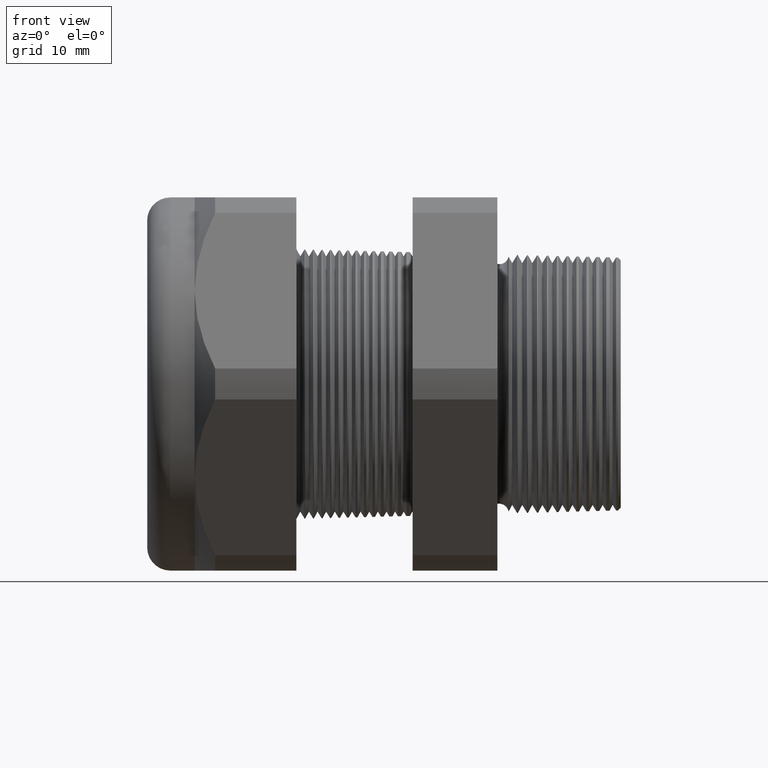
[diagram: clean part render]
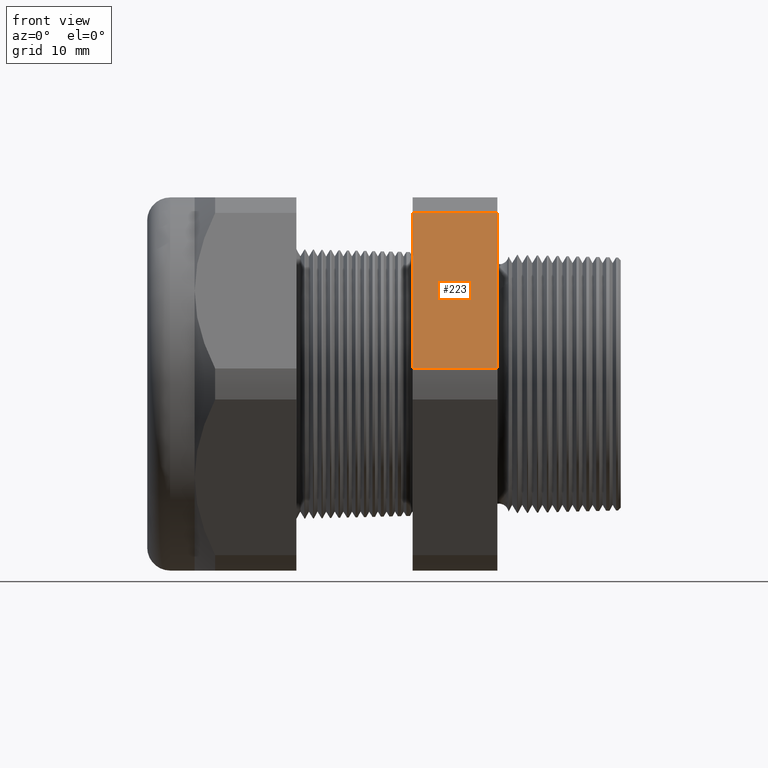
[diagram: same view with one face highlighted and labeled with its STEP entity id]
A machine part, front view. The second image highlights one B-rep face of the part: STEP entity #223.
In plain terms, the highlighted planar face has unit normal (0, -0.866, 0.5).
Its self-contained STEP definition (entity closure, byte-faithful):
#201 = ORIENTED_EDGE ( 'NONE', *, *, #5566, .F. ) ;
#202 = ORIENTED_EDGE ( 'NONE', *, *, #203, .F. ) ;
#203 = EDGE_CURVE ( 'NONE', #5491, #5564, #1127, .T. ) ;
#204 = ORIENTED_EDGE ( 'NONE', *, *, #5490, .F. ) ;
#221 = EDGE_CURVE ( 'NONE', #5488, #5567, #1167, .T. ) ;
#223 = ADVANCED_FACE ( 'NONE', ( #1163 ), #1162, .T. ) ;
#224 = EDGE_LOOP ( 'NONE', ( #225, #201, #202, #204 ) ) ;
#225 = ORIENTED_EDGE ( 'NONE', *, *, #221, .T. ) ;
#1124 = DIRECTION ( 'NONE',  ( -1.000000000000000000, 0.0000000000000000000, 0.0000000000000000000 ) ) ;
#1125 = VECTOR ( 'NONE', #1124, 39.37007874015748100 ) ;
#1126 = CARTESIAN_POINT ( 'NONE',  ( 0.1200000000000000900, -0.7194909755756819800, 0.05380507471562025900 ) ) ;
#1127 = LINE ( 'NONE', #1126, #1125 ) ;
#1158 = DIRECTION ( 'NONE',  ( 0.0000000000000000000, -0.4999999999999995600, -0.8660254037844388200 ) ) ;
#1159 = DIRECTION ( 'NONE',  ( 0.0000000000000000000, -0.8660254037844389300, 0.4999999999999996100 ) ) ;
#1160 = CARTESIAN_POINT ( 'NONE',  ( 0.1200000000000000900, -0.7194909755756819800, 0.05380507471562023100 ) ) ;
#1161 = AXIS2_PLACEMENT_3D ( 'NONE', #1160, #1159, #1158 ) ;
#1162 = PLANE ( 'NONE',  #1161 ) ;
#1163 = FACE_OUTER_BOUND ( 'NONE', #224, .T. ) ;
#1164 = DIRECTION ( 'NONE',  ( -1.000000000000000000, 0.0000000000000000000, 0.0000000000000000000 ) ) ;
#1165 = VECTOR ( 'NONE', #1164, 39.37007874015748100 ) ;
#1166 = CARTESIAN_POINT ( 'NONE',  ( 0.1200000000000000900, -0.4063420493440885700, 0.5961949252843791200 ) ) ;
#1167 = LINE ( 'NONE', #1166, #1165 ) ;
#3827 = CARTESIAN_POINT ( 'NONE',  ( -0.3100000000000000000, -0.7194909755756819800, 0.05380507471562025900 ) ) ;
#3828 = DIRECTION ( 'NONE',  ( 0.0000000000000000000, -0.4999999999999995600, -0.8660254037844388200 ) ) ;
#3829 = VECTOR ( 'NONE', #3828, 39.37007874015748900 ) ;
#3830 = CARTESIAN_POINT ( 'NONE',  ( -0.3100000000000000000, -0.2379165124598858200, 0.8879165124598844500 ) ) ;
#3831 = LINE ( 'NONE', #3830, #3829 ) ;
#3832 = CARTESIAN_POINT ( 'NONE',  ( -0.3100000000000000000, -0.4063420493440885700, 0.5961949252843791200 ) ) ;
#3957 = VECTOR ( 'NONE', #4019, 39.37007874015748900 ) ;
#3958 = CARTESIAN_POINT ( 'NONE',  ( -0.6052755905511809600, -0.2379165124598858200, 0.8879165124598844500 ) ) ;
#3959 = LINE ( 'NONE', #3958, #3957 ) ;
#3960 = CARTESIAN_POINT ( 'NONE',  ( -0.6052755905511810800, -0.7194909755756819800, 0.05380507471562025900 ) ) ;
#4018 = CARTESIAN_POINT ( 'NONE',  ( -0.6052755905511810800, -0.4063420493440885700, 0.5961949252843791200 ) ) ;
#4019 = DIRECTION ( 'NONE',  ( 0.0000000000000000000, 0.4999999999999995600, 0.8660254037844388200 ) ) ;
#5488 = VERTEX_POINT ( 'NONE', #3832 ) ;
#5490 = EDGE_CURVE ( 'NONE', #5488, #5491, #3831, .T. ) ;
#5491 = VERTEX_POINT ( 'NONE', #3827 ) ;
#5564 = VERTEX_POINT ( 'NONE', #3960 ) ;
#5566 = EDGE_CURVE ( 'NONE', #5564, #5567, #3959, .T. ) ;
#5567 = VERTEX_POINT ( 'NONE', #4018 ) ;